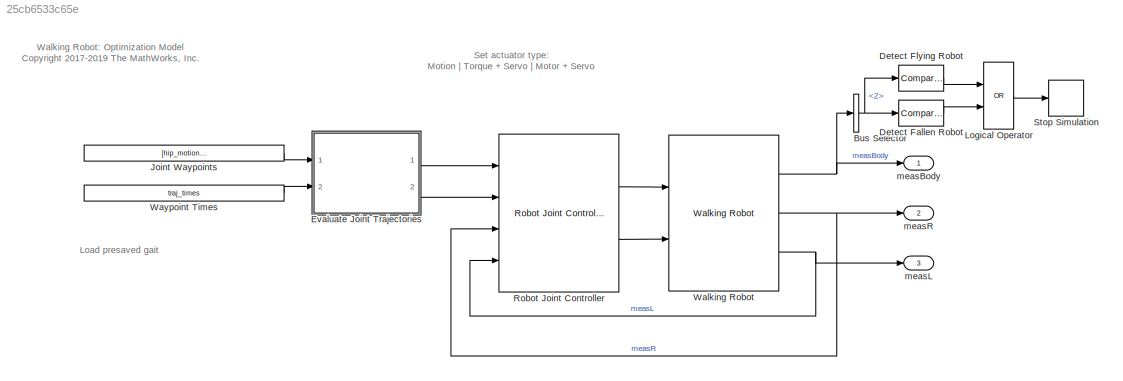
MODEL slx_25cb6533c65e
KIND model
CONFIG AbsTol = auto
CONFIG EnableMultiTasking = off
CONFIG FixedStep = auto
CONFIG InitFcn =     % Evaluate the trajectory at the start and halfway points for right and\n    % left legs, respectively, to get initial conditions and trajectory\n    % waypoint derivatives\n    [q,hip_der,knee_der,ankle_der] = createSmoothTrajectory( ... \n        hip_motion,knee_motion,ankle_motion,gait_period,[0 gait_period/2]);\n    % Package up the initial conditions, keeping the yaw/roll joints fixed\n    init...<+93ch>
CONFIG MaxStep = auto
CONFIG MinStep = auto
CONFIG PreLoadFcn = robotParameters\n\n% Trajectory sample time\ntsTraj = 0.01;          \n\n% Simulate air drag for stability \nworld_damping = 20; % Translational damping\nworld_rot_damping = 10;  % Rotational damping
CONFIG RelTol = 1e-3
CONFIG SampleTimeConstraint = Unconstrained
CONFIG Solver = VariableStepAuto
CONFIG SolverName = VariableStepAuto
CONFIG StartTime = 0.0
CONFIG StopTime = 10.0
BLOCK [BusSelector] Bus Selector
  OutputAsBus = off
  OutputSignals = Z
  Ports = [1, 1]
BLOCK [Reference] Detect Fallen Robot  REF=simulink/Logic and Bit
Operations/Compare
To Constant
  Ports = [1, 1]
  SourceBlock = simulink/Logic and Bit\nOperations/Compare\nTo Constant
  SourceProductBaseCode = SL
  SourceProductName = Simulink
  SourceType = Compare To Constant
BLOCK [Reference] Detect Flying Robot  REF=simulink/Logic and Bit
Operations/Compare
To Constant
  Ports = [1, 1]
  SourceBlock = simulink/Logic and Bit\nOperations/Compare\nTo Constant
  SourceProductBaseCode = SL
  SourceProductName = Simulink
  SourceType = Compare To Constant
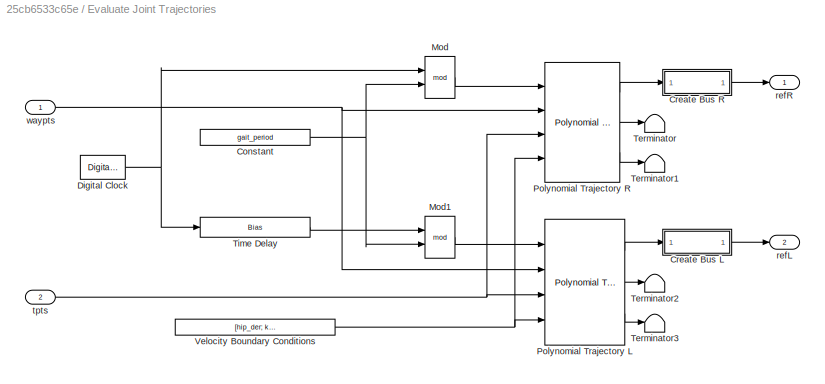
BLOCK [SubSystem] Evaluate Joint Trajectories
  Ports = [2, 2]
  RequestExecContextInheritance = off
BLOCK [Constant] Evaluate Joint Trajectories/Constant
  Value = gait_period
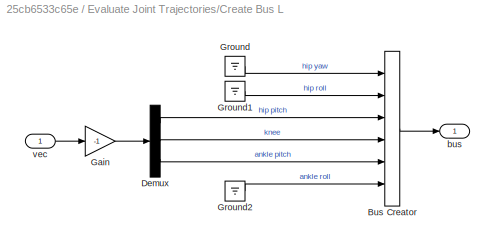
BLOCK [SubSystem] Evaluate Joint Trajectories/Create Bus L
  Ports = [1, 1]
  RequestExecContextInheritance = off
BLOCK [BusCreator] Evaluate Joint Trajectories/Create Bus L/Bus Creator
  DisplayOption = bar
  InheritFromInputs = on
  Inputs = 6
  Ports = [6, 1]
BLOCK [Demux] Evaluate Joint Trajectories/Create Bus L/Demux
  DisplayOption = bar
  Outputs = 3
  Ports = [1, 3]
BLOCK [Gain] Evaluate Joint Trajectories/Create Bus L/Gain
  Gain = -1
  OutDataTypeStr = Inherit: Inherit via internal rule
  ParamDataTypeStr = Inherit: Inherit via internal rule
  SaturateOnIntegerOverflow = off
BLOCK [Ground] Evaluate Joint Trajectories/Create Bus L/Ground
BLOCK [Ground] Evaluate Joint Trajectories/Create Bus L/Ground1
BLOCK [Ground] Evaluate Joint Trajectories/Create Bus L/Ground2
BLOCK [Outport] Evaluate Joint Trajectories/Create Bus L/bus
  IconDisplay = Port number
  VectorParamsAs1DForOutWhenUnconnected = off
BLOCK [Inport] Evaluate Joint Trajectories/Create Bus L/vec
  IconDisplay = Port number
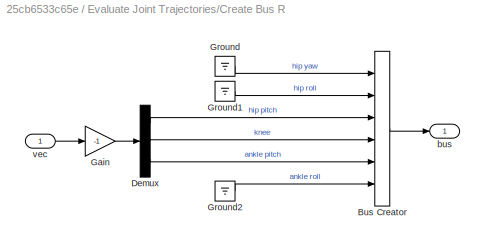
BLOCK [SubSystem] Evaluate Joint Trajectories/Create Bus R
  Ports = [1, 1]
  RequestExecContextInheritance = off
BLOCK [BusCreator] Evaluate Joint Trajectories/Create Bus R/Bus Creator
  DisplayOption = bar
  InheritFromInputs = on
  Inputs = 6
  Ports = [6, 1]
BLOCK [Demux] Evaluate Joint Trajectories/Create Bus R/Demux
  DisplayOption = bar
  Outputs = 3
  Ports = [1, 3]
BLOCK [Gain] Evaluate Joint Trajectories/Create Bus R/Gain
  Gain = -1
  OutDataTypeStr = Inherit: Inherit via internal rule
  ParamDataTypeStr = Inherit: Inherit via internal rule
  SaturateOnIntegerOverflow = off
BLOCK [Ground] Evaluate Joint Trajectories/Create Bus R/Ground
BLOCK [Ground] Evaluate Joint Trajectories/Create Bus R/Ground1
BLOCK [Ground] Evaluate Joint Trajectories/Create Bus R/Ground2
BLOCK [Outport] Evaluate Joint Trajectories/Create Bus R/bus
  IconDisplay = Port number
  VectorParamsAs1DForOutWhenUnconnected = off
BLOCK [Inport] Evaluate Joint Trajectories/Create Bus R/vec
  IconDisplay = Port number
BLOCK [DigitalClock] Evaluate Joint Trajectories/Digital Clock
  SampleTime = tsTraj
BLOCK [Math] Evaluate Joint Trajectories/Mod
  Operator = mod
  Ports = [2, 1]
  SignedPower = off
BLOCK [Math] Evaluate Joint Trajectories/Mod1
  Operator = mod
  Ports = [2, 1]
  SignedPower = off
BLOCK [Reference] Evaluate Joint Trajectories/Polynomial Trajectory L  REF=robotcorelib/Polynomial Trajectory
  Ports = [4, 3]
  SourceBlock = robotcorelib/Polynomial Trajectory
  SourceProductBaseCode = RO
  SourceProductName = Robotics System Toolbox
  SourceType = robotics.slcore.internal.block.PolyTrajSys
BLOCK [Reference] Evaluate Joint Trajectories/Polynomial Trajectory R  REF=robotcorelib/Polynomial Trajectory
  Ports = [4, 3]
  SourceBlock = robotcorelib/Polynomial Trajectory
  SourceProductBaseCode = RO
  SourceProductName = Robotics System Toolbox
  SourceType = robotics.slcore.internal.block.PolyTrajSys
BLOCK [Terminator] Evaluate Joint Trajectories/Terminator
BLOCK [Terminator] Evaluate Joint Trajectories/Terminator1
BLOCK [Terminator] Evaluate Joint Trajectories/Terminator2
BLOCK [Terminator] Evaluate Joint Trajectories/Terminator3
BLOCK [Bias] Evaluate Joint Trajectories/Time Delay
  Bias = -gait_period/2
  SaturateOnIntegerOverflow = off
BLOCK [Constant] Evaluate Joint Trajectories/Velocity Boundary Conditions
  Value = [hip_der; knee_der; ankle_der]
BLOCK [Outport] Evaluate Joint Trajectories/refL
  IconDisplay = Port number
  Port = 2
BLOCK [Outport] Evaluate Joint Trajectories/refR
  IconDisplay = Port number
BLOCK [Inport] Evaluate Joint Trajectories/tpts
  IconDisplay = Port number
  Port = 2
BLOCK [Inport] Evaluate Joint Trajectories/waypts
  IconDisplay = Port number
BLOCK [Constant] Joint Waypoints
  Value = [hip_motion; knee_motion; ankle_motion]
BLOCK [Logic] Logical Operator
  AllPortsSameDT = off
  Operator = OR
  OutDataTypeStr = boolean
  Ports = [2, 1]
BLOCK [Reference] Robot Joint Controller  REF=walkingRobotUtils/Robot Joint Controller
  Ports = [4, 2]
  SourceBlock = walkingRobotUtils/Robot Joint Controller
  SourceType = SubSystem
BLOCK [Stop] Stop Simulation
BLOCK [Reference] Walking Robot  REF=walkingRobotUtils/Walking Robot
  Ports = [2, 3]
  SourceBlock = walkingRobotUtils/Walking Robot
  SourceType = SubSystem
BLOCK [Constant] Waypoint Times
  Value = traj_times
BLOCK [Outport] measBody
  IconDisplay = Port number
  VectorParamsAs1DForOutWhenUnconnected = off
BLOCK [Outport] measL
  IconDisplay = Port number
  Port = 3
  VectorParamsAs1DForOutWhenUnconnected = off
BLOCK [Outport] measR
  IconDisplay = Port number
  Port = 2
  VectorParamsAs1DForOutWhenUnconnected = off
ANNOTATION (root): Set actuator type: Motion | Torque + Servo | Motor + Servo
ANNOTATION (root): Load presaved gait
ANNOTATION (root): Walking Robot: Optimization Model <copyright redacted>
NET Bus Selector:1 -> Detect Fallen Robot:1, Detect Flying Robot:1
LINE Detect Fallen Robot:1 -> Logical Operator:2
LINE Detect Flying Robot:1 -> Logical Operator:1
NET Evaluate Joint Trajectories/Constant:1 -> Evaluate Joint Trajectories/Mod1:2, Evaluate Joint Trajectories/Mod:2
LINE Evaluate Joint Trajectories/Create Bus L/Bus Creator:1 -> Evaluate Joint Trajectories/Create Bus L/bus:1
LINE Evaluate Joint Trajectories/Create Bus L/Demux:1 -> Evaluate Joint Trajectories/Create Bus L/Bus Creator:3
LINE Evaluate Joint Trajectories/Create Bus L/Demux:2 -> Evaluate Joint Trajectories/Create Bus L/Bus Creator:4
LINE Evaluate Joint Trajectories/Create Bus L/Demux:3 -> Evaluate Joint Trajectories/Create Bus L/Bus Creator:5
LINE Evaluate Joint Trajectories/Create Bus L/Gain:1 -> Evaluate Joint Trajectories/Create Bus L/Demux:1
LINE Evaluate Joint Trajectories/Create Bus L/Ground1:1 -> Evaluate Joint Trajectories/Create Bus L/Bus Creator:2
LINE Evaluate Joint Trajectories/Create Bus L/Ground2:1 -> Evaluate Joint Trajectories/Create Bus L/Bus Creator:6
LINE Evaluate Joint Trajectories/Create Bus L/Ground:1 -> Evaluate Joint Trajectories/Create Bus L/Bus Creator:1
LINE Evaluate Joint Trajectories/Create Bus L/vec:1 -> Evaluate Joint Trajectories/Create Bus L/Gain:1
LINE Evaluate Joint Trajectories/Create Bus L:1 -> Evaluate Joint Trajectories/refL:1
LINE Evaluate Joint Trajectories/Create Bus R/Bus Creator:1 -> Evaluate Joint Trajectories/Create Bus R/bus:1
LINE Evaluate Joint Trajectories/Create Bus R/Demux:1 -> Evaluate Joint Trajectories/Create Bus R/Bus Creator:3
LINE Evaluate Joint Trajectories/Create Bus R/Demux:2 -> Evaluate Joint Trajectories/Create Bus R/Bus Creator:4
LINE Evaluate Joint Trajectories/Create Bus R/Demux:3 -> Evaluate Joint Trajectories/Create Bus R/Bus Creator:5
LINE Evaluate Joint Trajectories/Create Bus R/Gain:1 -> Evaluate Joint Trajectories/Create Bus R/Demux:1
LINE Evaluate Joint Trajectories/Create Bus R/Ground1:1 -> Evaluate Joint Trajectories/Create Bus R/Bus Creator:2
LINE Evaluate Joint Trajectories/Create Bus R/Ground2:1 -> Evaluate Joint Trajectories/Create Bus R/Bus Creator:6
LINE Evaluate Joint Trajectories/Create Bus R/Ground:1 -> Evaluate Joint Trajectories/Create Bus R/Bus Creator:1
LINE Evaluate Joint Trajectories/Create Bus R/vec:1 -> Evaluate Joint Trajectories/Create Bus R/Gain:1
LINE Evaluate Joint Trajectories/Create Bus R:1 -> Evaluate Joint Trajectories/refR:1
NET Evaluate Joint Trajectories/Digital Clock:1 -> Evaluate Joint Trajectories/Mod:1, Evaluate Joint Trajectories/Time Delay:1
LINE Evaluate Joint Trajectories/Mod1:1 -> Evaluate Joint Trajectories/Polynomial Trajectory L:1
LINE Evaluate Joint Trajectories/Mod:1 -> Evaluate Joint Trajectories/Polynomial Trajectory R:1
LINE Evaluate Joint Trajectories/Polynomial Trajectory L:1 -> Evaluate Joint Trajectories/Create Bus L:1
LINE Evaluate Joint Trajectories/Polynomial Trajectory L:2 -> Evaluate Joint Trajectories/Terminator2:1
LINE Evaluate Joint Trajectories/Polynomial Trajectory L:3 -> Evaluate Joint Trajectories/Terminator3:1
LINE Evaluate Joint Trajectories/Polynomial Trajectory R:1 -> Evaluate Joint Trajectories/Create Bus R:1
LINE Evaluate Joint Trajectories/Polynomial Trajectory R:2 -> Evaluate Joint Trajectories/Terminator:1
LINE Evaluate Joint Trajectories/Polynomial Trajectory R:3 -> Evaluate Joint Trajectories/Terminator1:1
LINE Evaluate Joint Trajectories/Time Delay:1 -> Evaluate Joint Trajectories/Mod1:1
NET Evaluate Joint Trajectories/Velocity Boundary Conditions:1 -> Evaluate Joint Trajectories/Polynomial Trajectory L:4, Evaluate Joint Trajectories/Polynomial Trajectory R:4
NET Evaluate Joint Trajectories/tpts:1 -> Evaluate Joint Trajectories/Polynomial Trajectory L:3, Evaluate Joint Trajectories/Polynomial Trajectory R:3
NET Evaluate Joint Trajectories/waypts:1 -> Evaluate Joint Trajectories/Polynomial Trajectory L:2, Evaluate Joint Trajectories/Polynomial Trajectory R:2
LINE Evaluate Joint Trajectories:1 -> Robot Joint Controller:1
LINE Evaluate Joint Trajectories:2 -> Robot Joint Controller:2
LINE Joint Waypoints:1 -> Evaluate Joint Trajectories:1
LINE Logical Operator:1 -> Stop Simulation:1
LINE Robot Joint Controller:1 -> Walking Robot:1
LINE Robot Joint Controller:2 -> Walking Robot:2
NET Walking Robot:1 -> Bus Selector:1, measBody:1
NET Walking Robot:2 -> Robot Joint Controller:3, measR:1
NET Walking Robot:3 -> Robot Joint Controller:4, measL:1
LINE Waypoint Times:1 -> Evaluate Joint Trajectories:2
note: NET lines group one-source signal fan-out (src -> all destinations, sorted); 1:1 wires keep LINE
